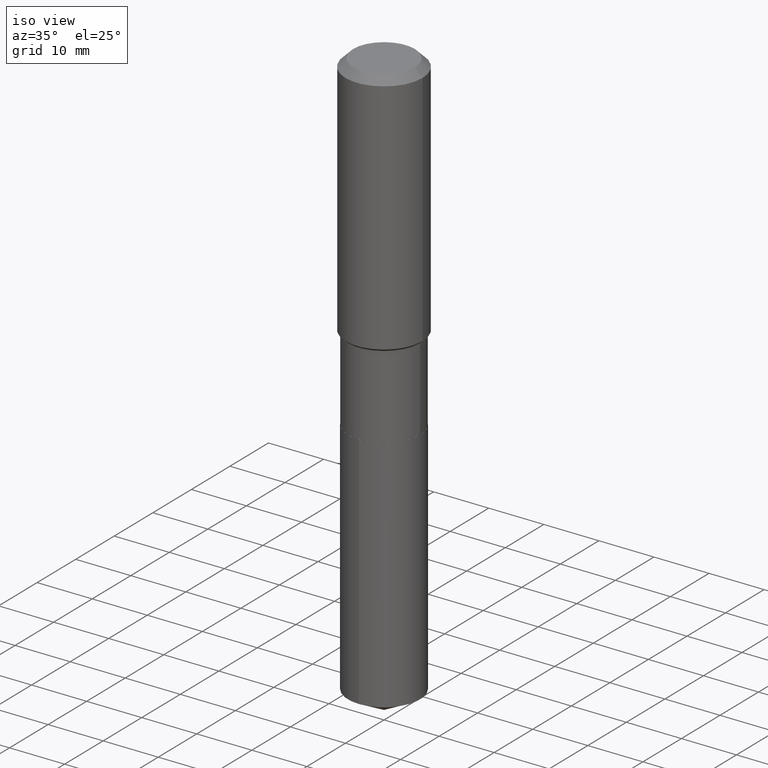
[diagram: clean part render]
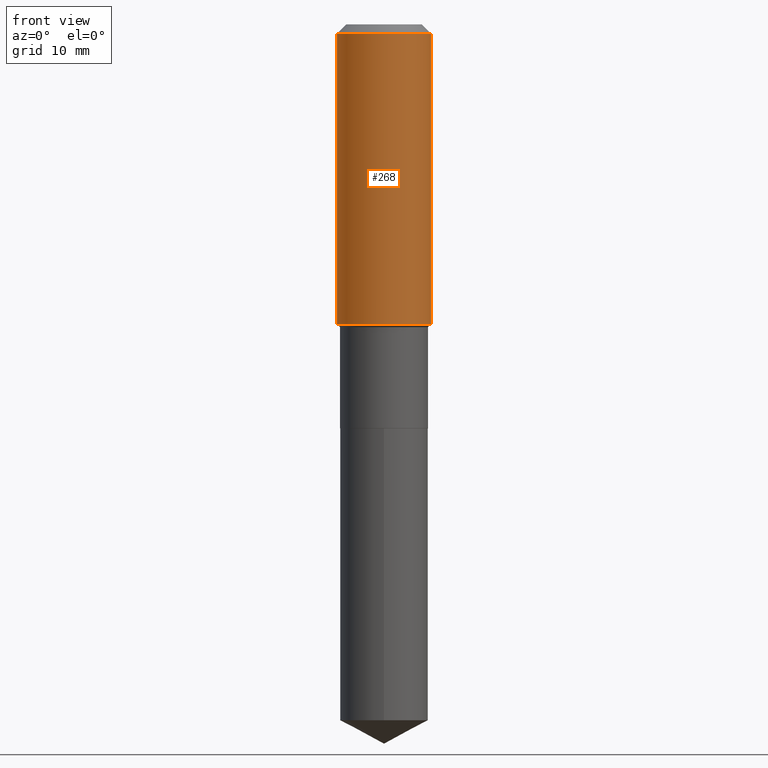
[diagram: tour spotlight — one face highlighted and labeled with its STEP entity id]
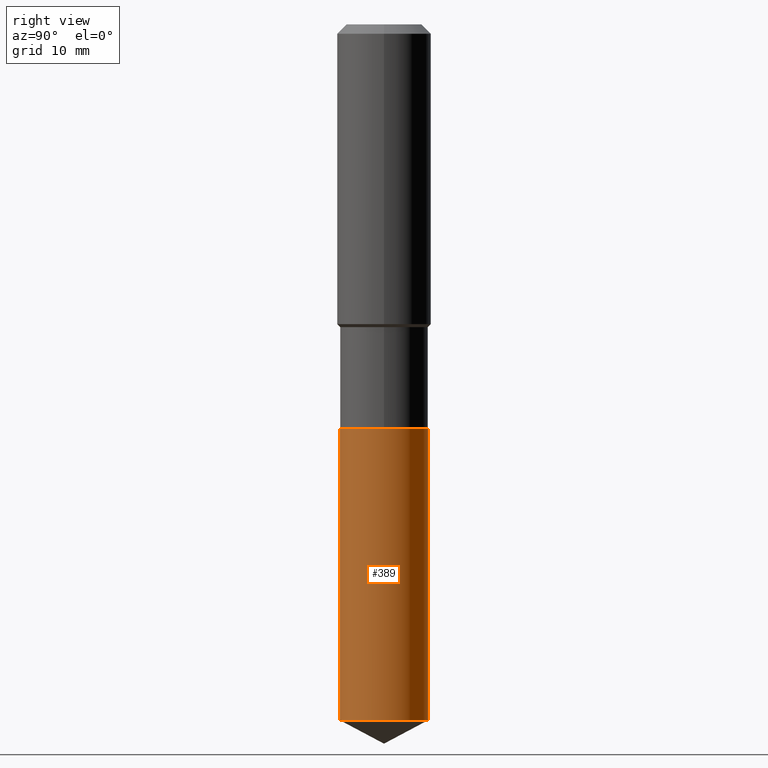
[diagram: tour spotlight — one face highlighted and labeled with its STEP entity id]
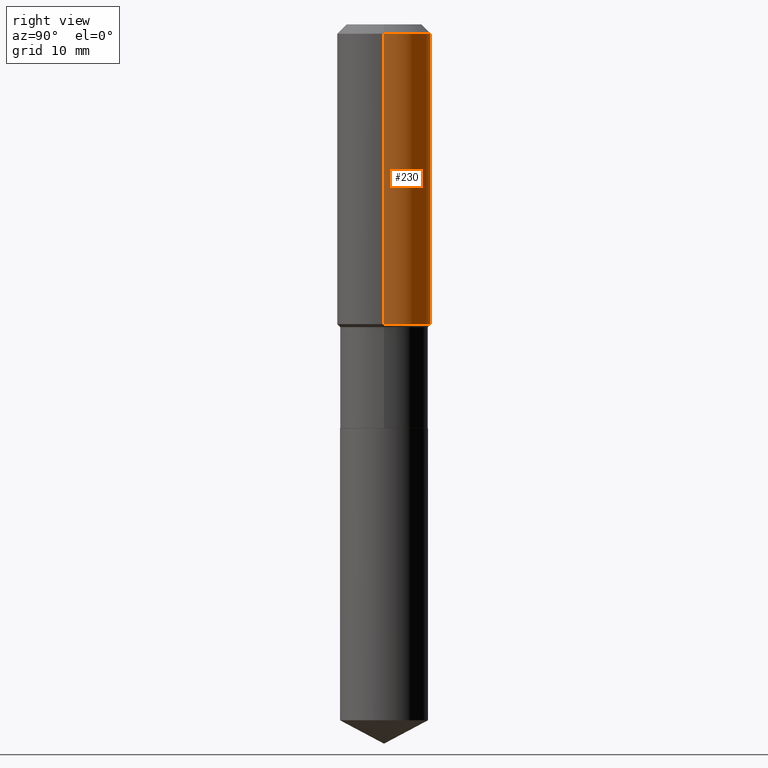
[diagram: tour spotlight — one face highlighted and labeled with its STEP entity id]
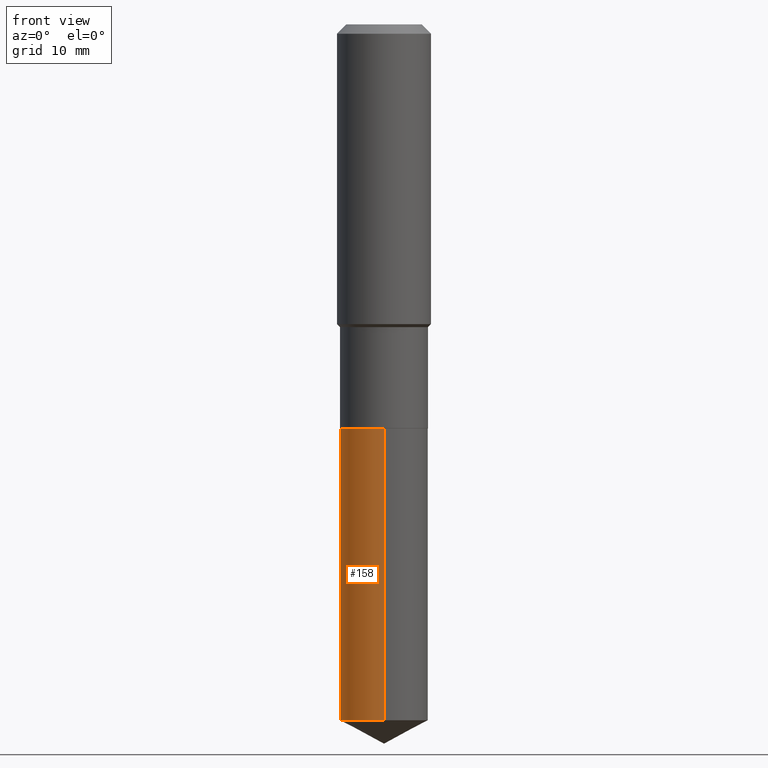
[diagram: tour spotlight — one face highlighted and labeled with its STEP entity id]
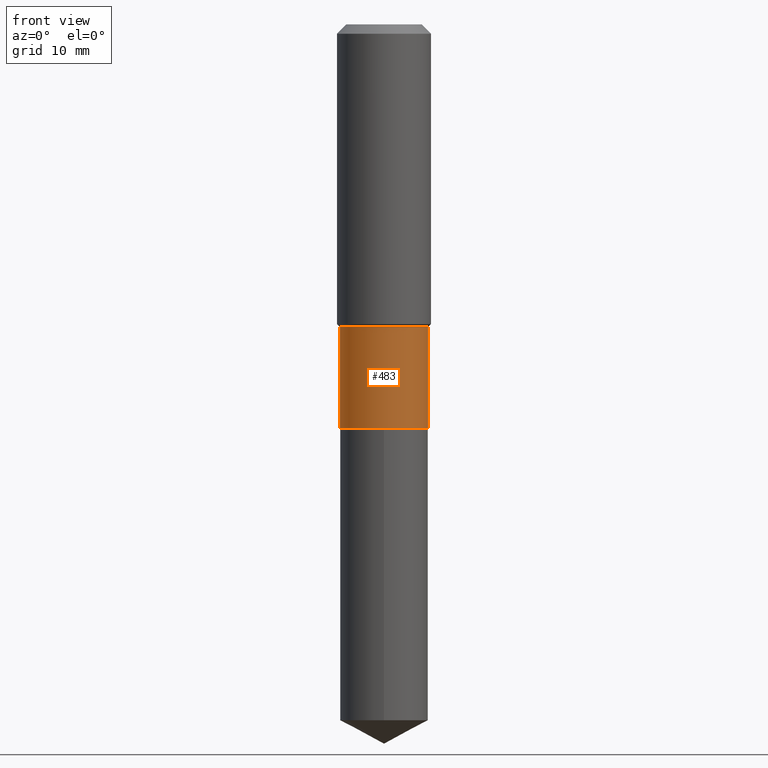
[diagram: tour spotlight — one face highlighted and labeled with its STEP entity id]
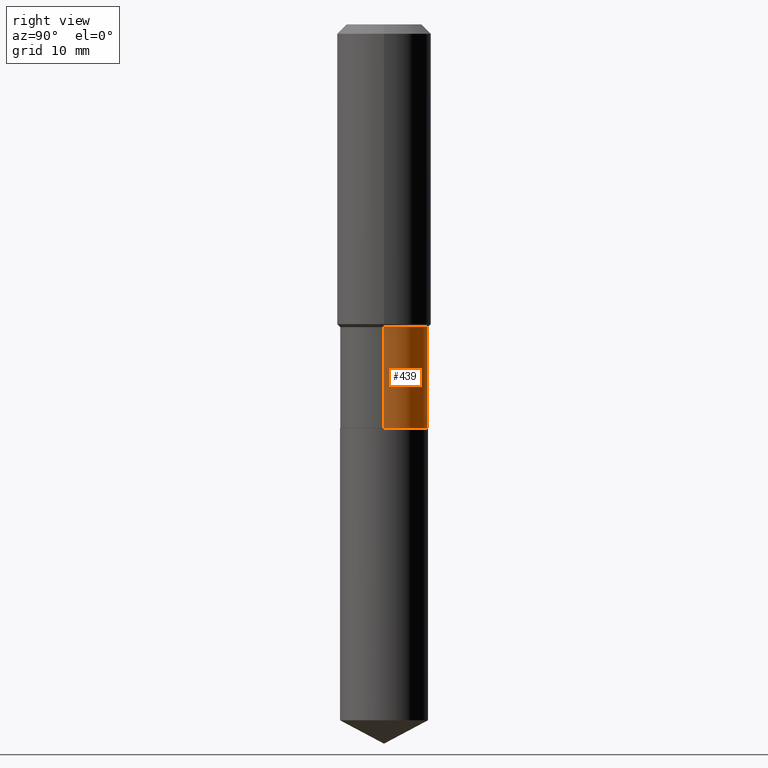
[diagram: tour spotlight — one face highlighted and labeled with its STEP entity id]
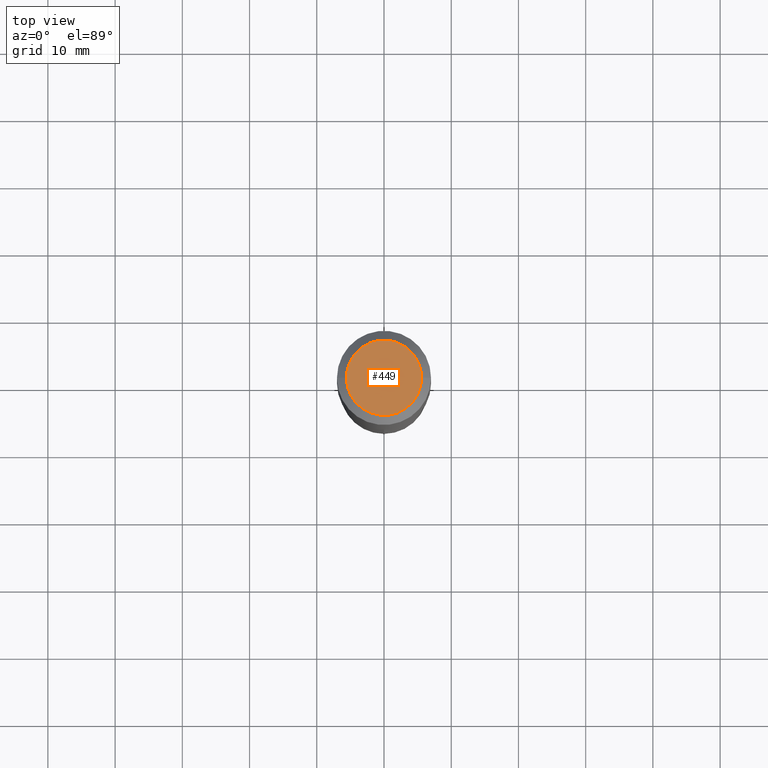
[diagram: tour spotlight — one face highlighted and labeled with its STEP entity id]
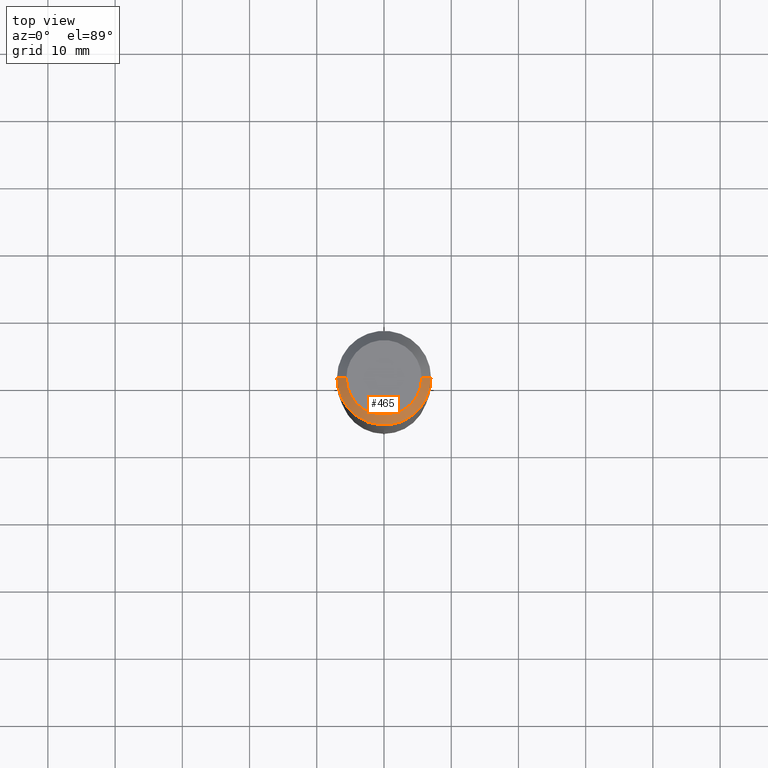
[diagram: tour spotlight — one face highlighted and labeled with its STEP entity id]
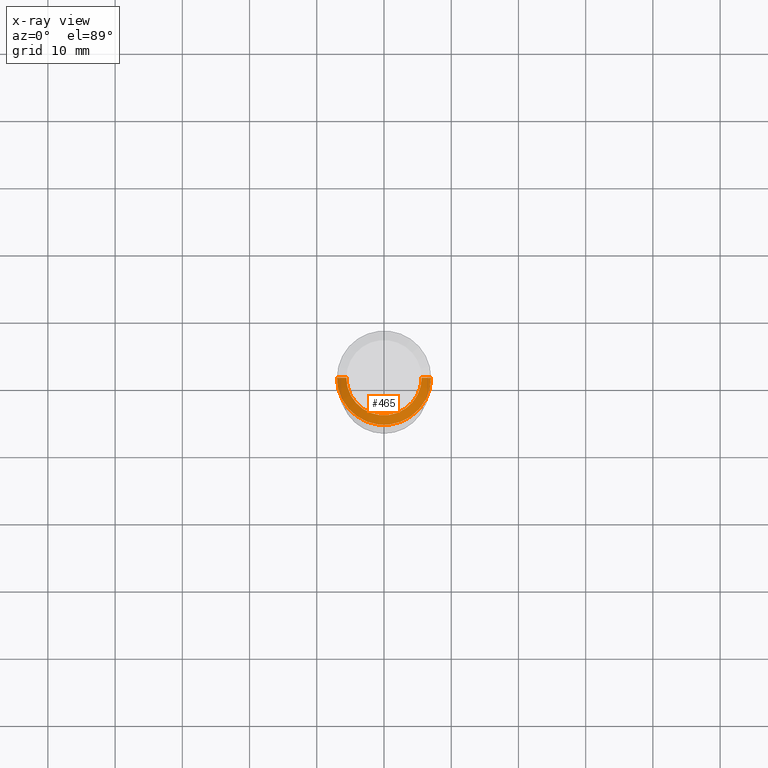
[diagram: x-ray of the same camera — body ghosted, this tour face saturated]
A machine part: a face-by-face anatomy tour. The part has 17 B-rep faces; the first image is the clean iso view, then the 8 largest visible faces are spotlighted one at a time (largest first), each with its STEP entity span.

Face 1 — front view, entity #268. In plain terms, the highlighted cylindrical surface (partial cylindrical patch) has radius 7.0002 mm, axis along (-0, 0, 1).
Definition (entity closure, byte-faithful):
#11 = CARTESIAN_POINT ( 'NONE',  ( 0.2756000000000002337, -8.053101708041710718E-15, -1.755300000000000304 ) ) ;
#12 = DIRECTION ( 'NONE',  ( -2.445468806185136877E-29, 3.491481338843145188E-15, 1.000000000000000000 ) ) ;
#14 = FACE_OUTER_BOUND ( 'NONE', #300, .T. ) ;
#22 = DIRECTION ( 'NONE',  ( -2.445468806185136597E-29, 3.491481338843145583E-15, 1.000000000000000000 ) ) ;
#30 = EDGE_CURVE ( 'NONE', #72, #81, #265, .T. ) ;
#53 = CARTESIAN_POINT ( 'NONE',  ( 0.000000000000000000, 0.000000000000000000, 0.000000000000000000 ) ) ;
#72 = VERTEX_POINT ( 'NONE', #76 ) ;
#76 = CARTESIAN_POINT ( 'NONE',  ( -0.2756000000000000116, -1.202268042979367764E-15, -0.05512000000000035621 ) ) ;
#79 = CARTESIAN_POINT ( 'NONE',  ( 0.2756000000000000116, -2.116954965367370658E-15, -0.05512000000000035621 ) ) ;
#81 = VERTEX_POINT ( 'NONE', #79 ) ;
#90 = CIRCLE ( 'NONE', #478, 0.2756000000000002337 ) ;
#109 = VERTEX_POINT ( 'NONE', #148 ) ;
#110 = EDGE_CURVE ( 'NONE', #109, #72, #306, .T. ) ;
#118 = CARTESIAN_POINT ( 'NONE',  ( 1.347942405969256063E-30, -1.924504513970354330E-16, -0.05512000000000035621 ) ) ;
#122 = ORIENTED_EDGE ( 'NONE', *, *, #30, .F. ) ;
#127 = AXIS2_PLACEMENT_3D ( 'NONE', #118, #203, #197 ) ;
#135 = CYLINDRICAL_SURFACE ( 'NONE', #338, 0.2756000000000001227 ) ;
#148 = CARTESIAN_POINT ( 'NONE',  ( -0.2756000000000002337, -4.170341414316536808E-15, -1.755300000000000304 ) ) ;
#183 = EDGE_CURVE ( 'NONE', #109, #185, #90, .T. ) ;
#185 = VERTEX_POINT ( 'NONE', #11 ) ;
#189 = ORIENTED_EDGE ( 'NONE', *, *, #377, .T. ) ;
#197 = DIRECTION ( 'NONE',  ( 1.000000000000000000, -6.982962677686265922E-15, 0.000000000000000000 ) ) ;
#203 = DIRECTION ( 'NONE',  ( -2.445468806185136597E-29, 3.491481338843145583E-15, 1.000000000000000000 ) ) ;
#209 = DIRECTION ( 'NONE',  ( -2.445468806185136597E-29, 3.491481338843145583E-15, 1.000000000000000000 ) ) ;
#227 = CARTESIAN_POINT ( 'NONE',  ( -0.2756000000000001227, 1.958255779754836984E-15, -1.355658510874252567E-29 ) ) ;
#234 = ORIENTED_EDGE ( 'NONE', *, *, #183, .T. ) ;
#236 = VECTOR ( 'NONE', #303, 39.37007874015748143 ) ;
#240 = CARTESIAN_POINT ( 'NONE',  ( 0.2756000000000001227, -1.924504513970336137E-15, 1.343874319409360548E-29 ) ) ;
#265 = CIRCLE ( 'NONE', #127, 0.2756000000000000116 ) ;
#268 = ADVANCED_FACE ( 'NONE', ( #14 ), #135, .T. ) ;
#278 = LINE ( 'NONE', #240, #307 ) ;
#300 = EDGE_LOOP ( 'NONE', ( #479, #234, #189, #122 ) ) ;
#303 = DIRECTION ( 'NONE',  ( -2.445468806185136877E-29, 3.491481338843145188E-15, 1.000000000000000000 ) ) ;
#306 = LINE ( 'NONE', #227, #236 ) ;
#307 = VECTOR ( 'NONE', #12, 39.37007874015748143 ) ;
#338 = AXIS2_PLACEMENT_3D ( 'NONE', #53, #22, #470 ) ;
#346 = CARTESIAN_POINT ( 'NONE',  ( 4.292531395496771171E-29, -6.128597194071374975E-15, -1.755300000000000304 ) ) ;
#377 = EDGE_CURVE ( 'NONE', #185, #81, #278, .T. ) ;
#463 = DIRECTION ( 'NONE',  ( 1.000000000000000000, -6.982962677686267499E-15, 0.000000000000000000 ) ) ;
#470 = DIRECTION ( 'NONE',  ( 1.000000000000000000, -6.982962677686267499E-15, 4.876176775795935793E-29 ) ) ;
#478 = AXIS2_PLACEMENT_3D ( 'NONE', #346, #209, #463 ) ;
#479 = ORIENTED_EDGE ( 'NONE', *, *, #110, .F. ) ;

Face 2 — right view, entity #389. In plain terms, the highlighted cylindrical surface (partial cylindrical patch) has radius 6.5481 mm, axis along (-0, 0, 1).
Definition (entity closure, byte-faithful):
#17 = EDGE_CURVE ( 'NONE', #219, #65, #20, .T. ) ;
#20 = CIRCLE ( 'NONE', #353, 0.2577999999999999736 ) ;
#28 = VERTEX_POINT ( 'NONE', #275 ) ;
#42 = CARTESIAN_POINT ( 'NONE',  ( 5.785979195434034596E-29, -8.260844847702884631E-15, -2.366000000000000547 ) ) ;
#52 = DIRECTION ( 'NONE',  ( -2.445495569307621090E-29, 3.491443012528485413E-15, 1.000000000000000000 ) ) ;
#65 = VERTEX_POINT ( 'NONE', #121 ) ;
#80 = AXIS2_PLACEMENT_3D ( 'NONE', #312, #387, #206 ) ;
#116 = CARTESIAN_POINT ( 'NONE',  ( -1.800207778307461580E-15, -0.2578000000000082448, -2.365999999999999659 ) ) ;
#121 = CARTESIAN_POINT ( 'NONE',  ( 1.831779172789637883E-15, 0.2577999999999917025, -2.366000000000000991 ) ) ;
#137 = ORIENTED_EDGE ( 'NONE', *, *, #423, .T. ) ;
#161 = EDGE_CURVE ( 'NONE', #363, #219, #453, .T. ) ;
#169 = FACE_OUTER_BOUND ( 'NONE', #283, .T. ) ;
#179 = DIRECTION ( 'NONE',  ( -2.445495569307621090E-29, 3.491443012528485413E-15, 1.000000000000000000 ) ) ;
#206 = DIRECTION ( 'NONE',  ( -6.982962677686265922E-15, -1.000000000000000000, 3.179031800229941890E-15 ) ) ;
#207 = CARTESIAN_POINT ( 'NONE',  ( -1.800207778307461580E-15, -0.2578000000000082448, -2.365999999999999659 ) ) ;
#219 = VERTEX_POINT ( 'NONE', #207 ) ;
#220 = VECTOR ( 'NONE', #413, 39.37007874015748143 ) ;
#245 = CYLINDRICAL_SURFACE ( 'NONE', #80, 0.2577999999999999736 ) ;
#271 = EDGE_CURVE ( 'NONE', #28, #65, #284, .T. ) ;
#275 = CARTESIAN_POINT ( 'NONE',  ( 1.831779172789638277E-15, 0.2577999999999858183, -4.075525308517672585 ) ) ;
#281 = CIRCLE ( 'NONE', #345, 0.2577999999999999736 ) ;
#283 = EDGE_LOOP ( 'NONE', ( #137, #405, #328, #422 ) ) ;
#284 = LINE ( 'NONE', #474, #313 ) ;
#312 = CARTESIAN_POINT ( 'NONE',  ( 5.785979195434034596E-29, -8.260844847702884631E-15, -2.366000000000000547 ) ) ;
#313 = VECTOR ( 'NONE', #179, 39.37007874015748143 ) ;
#328 = ORIENTED_EDGE ( 'NONE', *, *, #17, .F. ) ;
#332 = CARTESIAN_POINT ( 'NONE',  ( -1.800207778307420165E-15, -0.2578000000000142955, -4.075525308517669920 ) ) ;
#345 = AXIS2_PLACEMENT_3D ( 'NONE', #464, #52, #391 ) ;
#353 = AXIS2_PLACEMENT_3D ( 'NONE', #42, #368, #455 ) ;
#363 = VERTEX_POINT ( 'NONE', #332 ) ;
#368 = DIRECTION ( 'NONE',  ( -2.445495569307621090E-29, 3.491443012528485413E-15, 1.000000000000000000 ) ) ;
#387 = DIRECTION ( 'NONE',  ( -2.445495569307621090E-29, 3.491443012528485413E-15, 1.000000000000000000 ) ) ;
#389 = ADVANCED_FACE ( 'NONE', ( #169 ), #245, .T. ) ;
#391 = DIRECTION ( 'NONE',  ( -6.982962677686265922E-15, -1.000000000000000000, 4.238709066973255853E-15 ) ) ;
#405 = ORIENTED_EDGE ( 'NONE', *, *, #271, .T. ) ;
#413 = DIRECTION ( 'NONE',  ( -2.445495569307621090E-29, 3.491443012528485413E-15, 1.000000000000000000 ) ) ;
#422 = ORIENTED_EDGE ( 'NONE', *, *, #161, .F. ) ;
#423 = EDGE_CURVE ( 'NONE', #363, #28, #281, .T. ) ;
#453 = LINE ( 'NONE', #116, #220 ) ;
#455 = DIRECTION ( 'NONE',  ( -6.982962677686265922E-15, -1.000000000000000000, 3.179031800229941890E-15 ) ) ;
#464 = CARTESIAN_POINT ( 'NONE',  ( 9.966615763033243372E-29, -1.422955504086751126E-14, -4.075525308517671697 ) ) ;
#474 = CARTESIAN_POINT ( 'NONE',  ( 1.831779172789595679E-15, 0.2577999999999917025, -2.366000000000000991 ) ) ;

Face 3 — right view, entity #230. In plain terms, the highlighted cylindrical surface (partial cylindrical patch) has radius 7.0002 mm, axis along (-0, 0, 1).
Definition (entity closure, byte-faithful):
#11 = CARTESIAN_POINT ( 'NONE',  ( 0.2756000000000002337, -8.053101708041710718E-15, -1.755300000000000304 ) ) ;
#12 = DIRECTION ( 'NONE',  ( -2.445468806185136877E-29, 3.491481338843145188E-15, 1.000000000000000000 ) ) ;
#18 = DIRECTION ( 'NONE',  ( 1.000000000000000000, -6.982962677686267499E-15, 4.876176775795935793E-29 ) ) ;
#21 = CIRCLE ( 'NONE', #301, 0.2756000000000002337 ) ;
#57 = DIRECTION ( 'NONE',  ( 1.000000000000000000, -6.982962677686267499E-15, 0.000000000000000000 ) ) ;
#72 = VERTEX_POINT ( 'NONE', #76 ) ;
#76 = CARTESIAN_POINT ( 'NONE',  ( -0.2756000000000000116, -1.202268042979367764E-15, -0.05512000000000035621 ) ) ;
#79 = CARTESIAN_POINT ( 'NONE',  ( 0.2756000000000000116, -2.116954965367370658E-15, -0.05512000000000035621 ) ) ;
#81 = VERTEX_POINT ( 'NONE', #79 ) ;
#89 = DIRECTION ( 'NONE',  ( -2.445468806185136597E-29, 3.491481338843145583E-15, 1.000000000000000000 ) ) ;
#109 = VERTEX_POINT ( 'NONE', #148 ) ;
#110 = EDGE_CURVE ( 'NONE', #109, #72, #306, .T. ) ;
#117 = ORIENTED_EDGE ( 'NONE', *, *, #487, .F. ) ;
#131 = CARTESIAN_POINT ( 'NONE',  ( 0.000000000000000000, 0.000000000000000000, 0.000000000000000000 ) ) ;
#148 = CARTESIAN_POINT ( 'NONE',  ( -0.2756000000000002337, -4.170341414316536808E-15, -1.755300000000000304 ) ) ;
#153 = AXIS2_PLACEMENT_3D ( 'NONE', #425, #89, #237 ) ;
#167 = DIRECTION ( 'NONE',  ( -2.445468806185136597E-29, 3.491481338843145583E-15, 1.000000000000000000 ) ) ;
#185 = VERTEX_POINT ( 'NONE', #11 ) ;
#199 = AXIS2_PLACEMENT_3D ( 'NONE', #131, #426, #18 ) ;
#227 = CARTESIAN_POINT ( 'NONE',  ( -0.2756000000000001227, 1.958255779754836984E-15, -1.355658510874252567E-29 ) ) ;
#230 = ADVANCED_FACE ( 'NONE', ( #468 ), #349, .T. ) ;
#236 = VECTOR ( 'NONE', #303, 39.37007874015748143 ) ;
#237 = DIRECTION ( 'NONE',  ( 1.000000000000000000, -6.982962677686265922E-15, 0.000000000000000000 ) ) ;
#240 = CARTESIAN_POINT ( 'NONE',  ( 0.2756000000000001227, -1.924504513970336137E-15, 1.343874319409360548E-29 ) ) ;
#254 = EDGE_CURVE ( 'NONE', #185, #109, #21, .T. ) ;
#278 = LINE ( 'NONE', #240, #307 ) ;
#289 = ORIENTED_EDGE ( 'NONE', *, *, #110, .T. ) ;
#301 = AXIS2_PLACEMENT_3D ( 'NONE', #386, #167, #57 ) ;
#303 = DIRECTION ( 'NONE',  ( -2.445468806185136877E-29, 3.491481338843145188E-15, 1.000000000000000000 ) ) ;
#306 = LINE ( 'NONE', #227, #236 ) ;
#307 = VECTOR ( 'NONE', #12, 39.37007874015748143 ) ;
#349 = CYLINDRICAL_SURFACE ( 'NONE', #199, 0.2756000000000001227 ) ;
#362 = CIRCLE ( 'NONE', #153, 0.2756000000000000116 ) ;
#377 = EDGE_CURVE ( 'NONE', #185, #81, #278, .T. ) ;
#386 = CARTESIAN_POINT ( 'NONE',  ( 4.292531395496771171E-29, -6.128597194071374975E-15, -1.755300000000000304 ) ) ;
#425 = CARTESIAN_POINT ( 'NONE',  ( 1.347942405969256063E-30, -1.924504513970354330E-16, -0.05512000000000035621 ) ) ;
#426 = DIRECTION ( 'NONE',  ( -2.445468806185136597E-29, 3.491481338843145583E-15, 1.000000000000000000 ) ) ;
#430 = ORIENTED_EDGE ( 'NONE', *, *, #254, .T. ) ;
#460 = EDGE_LOOP ( 'NONE', ( #430, #289, #117, #472 ) ) ;
#468 = FACE_OUTER_BOUND ( 'NONE', #460, .T. ) ;
#472 = ORIENTED_EDGE ( 'NONE', *, *, #377, .F. ) ;
#487 = EDGE_CURVE ( 'NONE', #81, #72, #362, .T. ) ;

Face 4 — front view, entity #158. In plain terms, the highlighted cylindrical surface (partial cylindrical patch) has radius 6.5481 mm, axis along (-0, 0, 1).
Definition (entity closure, byte-faithful):
#23 = DIRECTION ( 'NONE',  ( -6.982962677686265922E-15, -1.000000000000000000, 3.179031800229941890E-15 ) ) ;
#28 = VERTEX_POINT ( 'NONE', #275 ) ;
#37 = DIRECTION ( 'NONE',  ( -6.982962677686265922E-15, -1.000000000000000000, 3.179031800229941890E-15 ) ) ;
#59 = ORIENTED_EDGE ( 'NONE', *, *, #271, .F. ) ;
#65 = VERTEX_POINT ( 'NONE', #121 ) ;
#67 = AXIS2_PLACEMENT_3D ( 'NONE', #94, #243, #23 ) ;
#94 = CARTESIAN_POINT ( 'NONE',  ( 5.785979195434034596E-29, -8.260844847702884631E-15, -2.366000000000000547 ) ) ;
#116 = CARTESIAN_POINT ( 'NONE',  ( -1.800207778307461580E-15, -0.2578000000000082448, -2.365999999999999659 ) ) ;
#121 = CARTESIAN_POINT ( 'NONE',  ( 1.831779172789637883E-15, 0.2577999999999917025, -2.366000000000000991 ) ) ;
#143 = CIRCLE ( 'NONE', #67, 0.2577999999999999736 ) ;
#147 = ORIENTED_EDGE ( 'NONE', *, *, #420, .F. ) ;
#157 = CYLINDRICAL_SURFACE ( 'NONE', #330, 0.2577999999999999736 ) ;
#158 = ADVANCED_FACE ( 'NONE', ( #267 ), #157, .T. ) ;
#159 = CARTESIAN_POINT ( 'NONE',  ( 5.785979195434034596E-29, -8.260844847702884631E-15, -2.366000000000000547 ) ) ;
#161 = EDGE_CURVE ( 'NONE', #363, #219, #453, .T. ) ;
#163 = DIRECTION ( 'NONE',  ( -6.982962677686265922E-15, -1.000000000000000000, 4.238709066973255853E-15 ) ) ;
#179 = DIRECTION ( 'NONE',  ( -2.445495569307621090E-29, 3.491443012528485413E-15, 1.000000000000000000 ) ) ;
#193 = AXIS2_PLACEMENT_3D ( 'NONE', #315, #214, #163 ) ;
#207 = CARTESIAN_POINT ( 'NONE',  ( -1.800207778307461580E-15, -0.2578000000000082448, -2.365999999999999659 ) ) ;
#214 = DIRECTION ( 'NONE',  ( -2.445495569307621090E-29, 3.491443012528485413E-15, 1.000000000000000000 ) ) ;
#219 = VERTEX_POINT ( 'NONE', #207 ) ;
#220 = VECTOR ( 'NONE', #413, 39.37007874015748143 ) ;
#243 = DIRECTION ( 'NONE',  ( -2.445495569307621090E-29, 3.491443012528485413E-15, 1.000000000000000000 ) ) ;
#257 = EDGE_CURVE ( 'NONE', #28, #363, #451, .T. ) ;
#267 = FACE_OUTER_BOUND ( 'NONE', #337, .T. ) ;
#271 = EDGE_CURVE ( 'NONE', #28, #65, #284, .T. ) ;
#275 = CARTESIAN_POINT ( 'NONE',  ( 1.831779172789638277E-15, 0.2577999999999858183, -4.075525308517672585 ) ) ;
#284 = LINE ( 'NONE', #474, #313 ) ;
#309 = DIRECTION ( 'NONE',  ( -2.445495569307621090E-29, 3.491443012528485413E-15, 1.000000000000000000 ) ) ;
#313 = VECTOR ( 'NONE', #179, 39.37007874015748143 ) ;
#315 = CARTESIAN_POINT ( 'NONE',  ( 9.966615763033243372E-29, -1.422955504086751126E-14, -4.075525308517671697 ) ) ;
#330 = AXIS2_PLACEMENT_3D ( 'NONE', #159, #309, #37 ) ;
#332 = CARTESIAN_POINT ( 'NONE',  ( -1.800207778307420165E-15, -0.2578000000000142955, -4.075525308517669920 ) ) ;
#337 = EDGE_LOOP ( 'NONE', ( #59, #434, #406, #147 ) ) ;
#363 = VERTEX_POINT ( 'NONE', #332 ) ;
#406 = ORIENTED_EDGE ( 'NONE', *, *, #161, .T. ) ;
#413 = DIRECTION ( 'NONE',  ( -2.445495569307621090E-29, 3.491443012528485413E-15, 1.000000000000000000 ) ) ;
#420 = EDGE_CURVE ( 'NONE', #65, #219, #143, .T. ) ;
#434 = ORIENTED_EDGE ( 'NONE', *, *, #257, .T. ) ;
#451 = CIRCLE ( 'NONE', #193, 0.2577999999999999736 ) ;
#453 = LINE ( 'NONE', #116, #220 ) ;
#474 = CARTESIAN_POINT ( 'NONE',  ( 1.831779172789595679E-15, 0.2577999999999917025, -2.366000000000000991 ) ) ;

Face 5 — front view, entity #483. In plain terms, the highlighted cylindrical surface (partial cylindrical patch) has radius 6.5481 mm, axis along (-0, 0, 1).
Definition (entity closure, byte-faithful):
#5 = CARTESIAN_POINT ( 'NONE',  ( -0.2577999999999999181, 1.831779172789537697E-15, -1.268101466267714406E-29 ) ) ;
#9 = VECTOR ( 'NONE', #417, 39.37007874015748143 ) ;
#34 = ORIENTED_EDGE ( 'NONE', *, *, #195, .T. ) ;
#39 = DIRECTION ( 'NONE',  ( 1.000000000000000000, -6.982962677686265922E-15, 0.000000000000000000 ) ) ;
#45 = DIRECTION ( 'NONE',  ( -2.445468806185136877E-29, 3.491481338843145188E-15, 1.000000000000000000 ) ) ;
#73 = ORIENTED_EDGE ( 'NONE', *, *, #104, .F. ) ;
#99 = AXIS2_PLACEMENT_3D ( 'NONE', #136, #421, #311 ) ;
#104 = EDGE_CURVE ( 'NONE', #441, #192, #341, .T. ) ;
#106 = CIRCLE ( 'NONE', #410, 0.2577999999999999181 ) ;
#113 = CARTESIAN_POINT ( 'NONE',  ( 5.784756461030941795E-29, -8.259099107033462339E-15, -2.365500000000000380 ) ) ;
#115 = CARTESIAN_POINT ( 'NONE',  ( 4.336060740246867168E-29, -6.190745561902783658E-15, -1.773100000000000565 ) ) ;
#125 = CARTESIAN_POINT ( 'NONE',  ( -0.2577999999999999181, -5.393143161678585695E-15, -1.773100000000000565 ) ) ;
#136 = CARTESIAN_POINT ( 'NONE',  ( 0.000000000000000000, 0.000000000000000000, 0.000000000000000000 ) ) ;
#151 = EDGE_CURVE ( 'NONE', #192, #264, #106, .T. ) ;
#173 = AXIS2_PLACEMENT_3D ( 'NONE', #113, #314, #429 ) ;
#174 = LINE ( 'NONE', #424, #485 ) ;
#192 = VERTEX_POINT ( 'NONE', #125 ) ;
#195 = EDGE_CURVE ( 'NONE', #366, #264, #174, .T. ) ;
#229 = DIRECTION ( 'NONE',  ( -2.445468806185136597E-29, 3.491481338843145583E-15, 1.000000000000000000 ) ) ;
#261 = ORIENTED_EDGE ( 'NONE', *, *, #374, .T. ) ;
#264 = VERTEX_POINT ( 'NONE', #390 ) ;
#274 = CIRCLE ( 'NONE', #173, 0.2577999999999999736 ) ;
#296 = CARTESIAN_POINT ( 'NONE',  ( 0.2577999999999999736, -1.005930688534098151E-14, -2.365500000000000380 ) ) ;
#311 = DIRECTION ( 'NONE',  ( 1.000000000000000000, -6.982962677686267499E-15, 4.876176775795936353E-29 ) ) ;
#314 = DIRECTION ( 'NONE',  ( -2.445468806185136597E-29, 3.491481338843145583E-15, 1.000000000000000000 ) ) ;
#333 = EDGE_LOOP ( 'NONE', ( #73, #261, #34, #399 ) ) ;
#341 = LINE ( 'NONE', #5, #9 ) ;
#347 = FACE_OUTER_BOUND ( 'NONE', #333, .T. ) ;
#366 = VERTEX_POINT ( 'NONE', #296 ) ;
#374 = EDGE_CURVE ( 'NONE', #441, #366, #274, .T. ) ;
#390 = CARTESIAN_POINT ( 'NONE',  ( 0.2577999999999999181, -7.990953340210302036E-15, -1.773100000000000565 ) ) ;
#399 = ORIENTED_EDGE ( 'NONE', *, *, #151, .F. ) ;
#410 = AXIS2_PLACEMENT_3D ( 'NONE', #115, #229, #39 ) ;
#417 = DIRECTION ( 'NONE',  ( -2.445468806185136877E-29, 3.491481338843145188E-15, 1.000000000000000000 ) ) ;
#421 = DIRECTION ( 'NONE',  ( -2.445468806185136597E-29, 3.491481338843145583E-15, 1.000000000000000000 ) ) ;
#424 = CARTESIAN_POINT ( 'NONE',  ( 0.2577999999999999181, -1.800207778307519167E-15, 1.257078372800191925E-29 ) ) ;
#429 = DIRECTION ( 'NONE',  ( 1.000000000000000000, -6.982962677686264344E-15, 0.000000000000000000 ) ) ;
#441 = VERTEX_POINT ( 'NONE', #471 ) ;
#471 = CARTESIAN_POINT ( 'NONE',  ( -0.2578000000000000291, -5.393143161678585695E-15, -2.365500000000000380 ) ) ;
#475 = CYLINDRICAL_SURFACE ( 'NONE', #99, 0.2577999999999999181 ) ;
#483 = ADVANCED_FACE ( 'NONE', ( #347 ), #475, .T. ) ;
#485 = VECTOR ( 'NONE', #45, 39.37007874015748143 ) ;

Face 6 — right view, entity #439. In plain terms, the highlighted cylindrical surface (partial cylindrical patch) has radius 6.5481 mm, axis along (-0, 0, 1).
Definition (entity closure, byte-faithful):
#5 = CARTESIAN_POINT ( 'NONE',  ( -0.2577999999999999181, 1.831779172789537697E-15, -1.268101466267714406E-29 ) ) ;
#6 = EDGE_CURVE ( 'NONE', #366, #441, #373, .T. ) ;
#9 = VECTOR ( 'NONE', #417, 39.37007874015748143 ) ;
#44 = EDGE_CURVE ( 'NONE', #264, #192, #416, .T. ) ;
#45 = DIRECTION ( 'NONE',  ( -2.445468806185136877E-29, 3.491481338843145188E-15, 1.000000000000000000 ) ) ;
#47 = EDGE_LOOP ( 'NONE', ( #87, #145, #408, #392 ) ) ;
#84 = DIRECTION ( 'NONE',  ( 1.000000000000000000, -6.982962677686264344E-15, 0.000000000000000000 ) ) ;
#87 = ORIENTED_EDGE ( 'NONE', *, *, #6, .T. ) ;
#104 = EDGE_CURVE ( 'NONE', #441, #192, #341, .T. ) ;
#125 = CARTESIAN_POINT ( 'NONE',  ( -0.2577999999999999181, -5.393143161678585695E-15, -1.773100000000000565 ) ) ;
#138 = AXIS2_PLACEMENT_3D ( 'NONE', #450, #415, #375 ) ;
#145 = ORIENTED_EDGE ( 'NONE', *, *, #104, .T. ) ;
#170 = AXIS2_PLACEMENT_3D ( 'NONE', #459, #272, #84 ) ;
#174 = LINE ( 'NONE', #424, #485 ) ;
#192 = VERTEX_POINT ( 'NONE', #125 ) ;
#195 = EDGE_CURVE ( 'NONE', #366, #264, #174, .T. ) ;
#210 = DIRECTION ( 'NONE',  ( -2.445468806185136597E-29, 3.491481338843145583E-15, 1.000000000000000000 ) ) ;
#264 = VERTEX_POINT ( 'NONE', #390 ) ;
#272 = DIRECTION ( 'NONE',  ( -2.445468806185136597E-29, 3.491481338843145583E-15, 1.000000000000000000 ) ) ;
#280 = FACE_OUTER_BOUND ( 'NONE', #47, .T. ) ;
#296 = CARTESIAN_POINT ( 'NONE',  ( 0.2577999999999999736, -1.005930688534098151E-14, -2.365500000000000380 ) ) ;
#302 = AXIS2_PLACEMENT_3D ( 'NONE', #461, #210, #384 ) ;
#341 = LINE ( 'NONE', #5, #9 ) ;
#366 = VERTEX_POINT ( 'NONE', #296 ) ;
#373 = CIRCLE ( 'NONE', #170, 0.2577999999999999736 ) ;
#375 = DIRECTION ( 'NONE',  ( 1.000000000000000000, -6.982962677686265922E-15, 0.000000000000000000 ) ) ;
#380 = CYLINDRICAL_SURFACE ( 'NONE', #302, 0.2577999999999999181 ) ;
#384 = DIRECTION ( 'NONE',  ( 1.000000000000000000, -6.982962677686267499E-15, 4.876176775795936353E-29 ) ) ;
#390 = CARTESIAN_POINT ( 'NONE',  ( 0.2577999999999999181, -7.990953340210302036E-15, -1.773100000000000565 ) ) ;
#392 = ORIENTED_EDGE ( 'NONE', *, *, #195, .F. ) ;
#408 = ORIENTED_EDGE ( 'NONE', *, *, #44, .F. ) ;
#415 = DIRECTION ( 'NONE',  ( -2.445468806185136597E-29, 3.491481338843145583E-15, 1.000000000000000000 ) ) ;
#416 = CIRCLE ( 'NONE', #138, 0.2577999999999999181 ) ;
#417 = DIRECTION ( 'NONE',  ( -2.445468806185136877E-29, 3.491481338843145188E-15, 1.000000000000000000 ) ) ;
#424 = CARTESIAN_POINT ( 'NONE',  ( 0.2577999999999999181, -1.800207778307519167E-15, 1.257078372800191925E-29 ) ) ;
#439 = ADVANCED_FACE ( 'NONE', ( #280 ), #380, .T. ) ;
#441 = VERTEX_POINT ( 'NONE', #471 ) ;
#450 = CARTESIAN_POINT ( 'NONE',  ( 4.336060740246867168E-29, -6.190745561902783658E-15, -1.773100000000000565 ) ) ;
#459 = CARTESIAN_POINT ( 'NONE',  ( 5.784756461030941795E-29, -8.259099107033462339E-15, -2.365500000000000380 ) ) ;
#461 = CARTESIAN_POINT ( 'NONE',  ( 0.000000000000000000, 0.000000000000000000, 0.000000000000000000 ) ) ;
#471 = CARTESIAN_POINT ( 'NONE',  ( -0.2578000000000000291, -5.393143161678585695E-15, -2.365500000000000380 ) ) ;
#485 = VECTOR ( 'NONE', #45, 39.37007874015748143 ) ;

Face 7 — top view, entity #449. In plain terms, the highlighted planar face has unit normal (0, -0, -1).
Definition (entity closure, byte-faithful):
#19 = FACE_OUTER_BOUND ( 'NONE', #263, .T. ) ;
#24 = DIRECTION ( 'NONE',  ( -1.000000000000000000, 6.982962677686265922E-15, -4.876176775795935793E-29 ) ) ;
#46 = PLANE ( 'NONE',  #160 ) ;
#50 = DIRECTION ( 'NONE',  ( 1.000000000000000000, -6.982962677686266711E-15, 4.876132675269083677E-29 ) ) ;
#114 = CIRCLE ( 'NONE', #182, 0.2204800000000000093 ) ;
#150 = AXIS2_PLACEMENT_3D ( 'NONE', #235, #242, #50 ) ;
#160 = AXIS2_PLACEMENT_3D ( 'NONE', #215, #357, #24 ) ;
#165 = ORIENTED_EDGE ( 'NONE', *, *, #186, .T. ) ;
#182 = AXIS2_PLACEMENT_3D ( 'NONE', #187, #365, #481 ) ;
#186 = EDGE_CURVE ( 'NONE', #480, #371, #400, .T. ) ;
#187 = CARTESIAN_POINT ( 'NONE',  ( -9.439721640706190018E-47, 1.347742071746724849E-32, 3.860086710912454339E-18 ) ) ;
#215 = CARTESIAN_POINT ( 'NONE',  ( -4.719860820353095009E-47, 6.738710358733624243E-33, 1.930043355456227170E-18 ) ) ;
#233 = CARTESIAN_POINT ( 'NONE',  ( 0.2204800000000000093, -1.797903149065768707E-15, 3.860086710924123164E-18 ) ) ;
#235 = CARTESIAN_POINT ( 'NONE',  ( -9.439721640706190018E-47, 1.347742071746724849E-32, 3.860086710912454339E-18 ) ) ;
#242 = DIRECTION ( 'NONE',  ( -2.445468806185136597E-29, 3.491481338843145583E-15, 1.000000000000000000 ) ) ;
#263 = EDGE_LOOP ( 'NONE', ( #277, #165 ) ) ;
#277 = ORIENTED_EDGE ( 'NONE', *, *, #326, .T. ) ;
#326 = EDGE_CURVE ( 'NONE', #371, #480, #114, .T. ) ;
#334 = CARTESIAN_POINT ( 'NONE',  ( -0.2204800000000000093, 1.635828836874783961E-15, 3.860086710901350968E-18 ) ) ;
#357 = DIRECTION ( 'NONE',  ( 2.438088387897960049E-29, -3.491481338843145188E-15, -1.000000000000000000 ) ) ;
#365 = DIRECTION ( 'NONE',  ( -2.445468806185136597E-29, 3.491481338843145583E-15, 1.000000000000000000 ) ) ;
#371 = VERTEX_POINT ( 'NONE', #334 ) ;
#400 = CIRCLE ( 'NONE', #150, 0.2204800000000000093 ) ;
#449 = ADVANCED_FACE ( 'NONE', ( #19 ), #46, .F. ) ;
#480 = VERTEX_POINT ( 'NONE', #233 ) ;
#481 = DIRECTION ( 'NONE',  ( 1.000000000000000000, -6.982962677686266711E-15, 4.876132675269083677E-29 ) ) ;

Face 8 — top view, entity #465. An x-ray twin of the same camera follows (body ghosted, this face saturated) — the face is partly hidden behind the body. In plain terms, the highlighted conical surface has half-angle 45 deg.
Definition (entity closure, byte-faithful):
#30 = EDGE_CURVE ( 'NONE', #72, #81, #265, .T. ) ;
#72 = VERTEX_POINT ( 'NONE', #76 ) ;
#76 = CARTESIAN_POINT ( 'NONE',  ( -0.2756000000000000116, -1.202268042979367764E-15, -0.05512000000000035621 ) ) ;
#79 = CARTESIAN_POINT ( 'NONE',  ( 0.2756000000000000116, -2.116954965367370658E-15, -0.05512000000000035621 ) ) ;
#81 = VERTEX_POINT ( 'NONE', #79 ) ;
#105 = EDGE_CURVE ( 'NONE', #371, #72, #419, .T. ) ;
#107 = CARTESIAN_POINT ( 'NONE',  ( 0.2756000000000000116, -2.083203699582869812E-15, -0.05512000000000035621 ) ) ;
#114 = CIRCLE ( 'NONE', #182, 0.2204800000000000093 ) ;
#118 = CARTESIAN_POINT ( 'NONE',  ( 1.347942405969256063E-30, -1.924504513970354330E-16, -0.05512000000000035621 ) ) ;
#127 = AXIS2_PLACEMENT_3D ( 'NONE', #118, #203, #197 ) ;
#133 = ORIENTED_EDGE ( 'NONE', *, *, #348, .F. ) ;
#164 = DIRECTION ( 'NONE',  ( 2.445468806185136597E-29, -3.491481338843145583E-15, -1.000000000000000000 ) ) ;
#178 = CARTESIAN_POINT ( 'NONE',  ( 1.347942405969256063E-30, -1.924504513970354330E-16, -0.05512000000000035621 ) ) ;
#182 = AXIS2_PLACEMENT_3D ( 'NONE', #187, #365, #481 ) ;
#187 = CARTESIAN_POINT ( 'NONE',  ( -9.439721640706190018E-47, 1.347742071746724849E-32, 3.860086710912454339E-18 ) ) ;
#197 = DIRECTION ( 'NONE',  ( 1.000000000000000000, -6.982962677686265922E-15, 0.000000000000000000 ) ) ;
#201 = ORIENTED_EDGE ( 'NONE', *, *, #30, .T. ) ;
#203 = DIRECTION ( 'NONE',  ( -2.445468806185136597E-29, 3.491481338843145583E-15, 1.000000000000000000 ) ) ;
#226 = ORIENTED_EDGE ( 'NONE', *, *, #326, .F. ) ;
#233 = CARTESIAN_POINT ( 'NONE',  ( 0.2204800000000000093, -1.797903149065768707E-15, 3.860086710924123164E-18 ) ) ;
#246 = ORIENTED_EDGE ( 'NONE', *, *, #105, .T. ) ;
#247 = VECTOR ( 'NONE', #258, 39.37007874015748143 ) ;
#258 = DIRECTION ( 'NONE',  ( 0.7071067811865453523, -7.319954787623248157E-15, -0.7071067811865496822 ) ) ;
#265 = CIRCLE ( 'NONE', #127, 0.2756000000000000116 ) ;
#293 = LINE ( 'NONE', #107, #247 ) ;
#304 = EDGE_LOOP ( 'NONE', ( #133, #226, #246, #201 ) ) ;
#318 = DIRECTION ( 'NONE',  ( -1.000000000000000000, 6.982962677686269077E-15, 0.000000000000000000 ) ) ;
#326 = EDGE_CURVE ( 'NONE', #371, #480, #114, .T. ) ;
#334 = CARTESIAN_POINT ( 'NONE',  ( -0.2204800000000000093, 1.635828836874783961E-15, 3.860086710901350968E-18 ) ) ;
#336 = DIRECTION ( 'NONE',  ( -0.7071067811865453523, 2.468850131082234184E-15, -0.7071067811865496822 ) ) ;
#348 = EDGE_CURVE ( 'NONE', #480, #81, #293, .T. ) ;
#365 = DIRECTION ( 'NONE',  ( -2.445468806185136597E-29, 3.491481338843145583E-15, 1.000000000000000000 ) ) ;
#371 = VERTEX_POINT ( 'NONE', #334 ) ;
#393 = VECTOR ( 'NONE', #336, 39.37007874015748143 ) ;
#395 = AXIS2_PLACEMENT_3D ( 'NONE', #178, #164, #318 ) ;
#419 = LINE ( 'NONE', #490, #393 ) ;
#427 = FACE_OUTER_BOUND ( 'NONE', #304, .T. ) ;
#452 = CONICAL_SURFACE ( 'NONE', #395, 0.2756000000000000116, 0.7853981633974452814 ) ;
#465 = ADVANCED_FACE ( 'NONE', ( #427 ), #452, .T. ) ;
#480 = VERTEX_POINT ( 'NONE', #233 ) ;
#481 = DIRECTION ( 'NONE',  ( 1.000000000000000000, -6.982962677686266711E-15, 4.876132675269083677E-29 ) ) ;
#490 = CARTESIAN_POINT ( 'NONE',  ( -0.2756000000000000116, 1.732054062573300039E-15, -0.05512000000000035621 ) ) ;